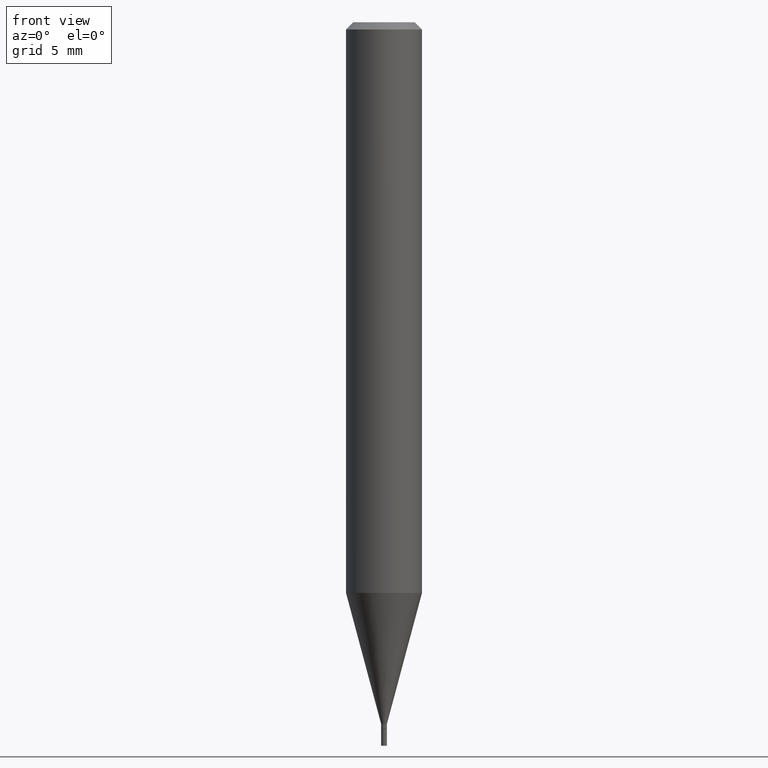
[diagram: clean part render]
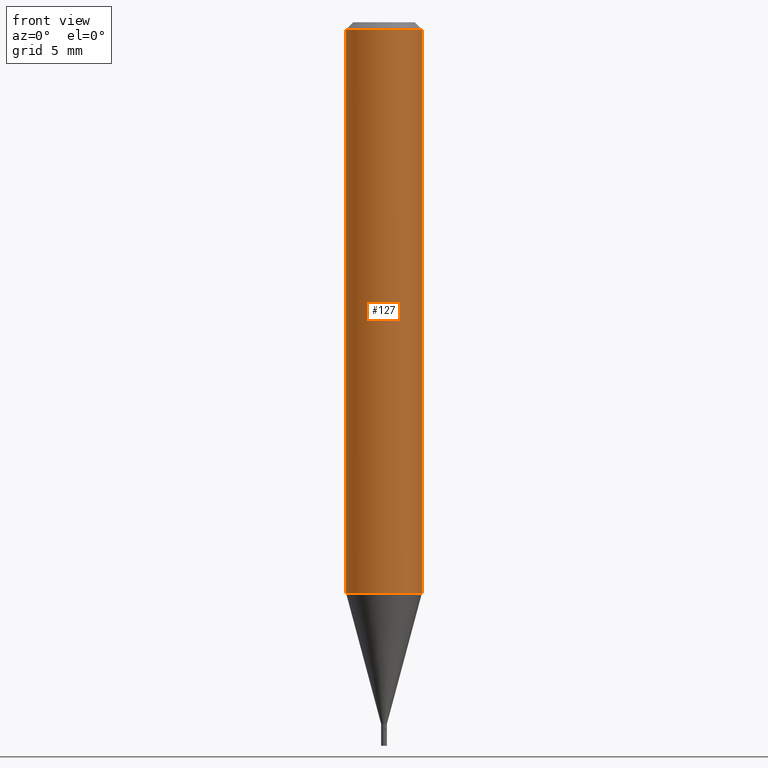
[diagram: same view with one face highlighted and labeled with its STEP entity id]
A machine part, front view. The second image highlights one B-rep face of the part: STEP entity #127.
In plain terms, the highlighted cylindrical surface (partial cylindrical patch) has radius 2.0002 mm, axis along (-0, 0, 1).
Its self-contained STEP definition (entity closure, byte-faithful):
#7 = CYLINDRICAL_SURFACE ( 'NONE', #288, 0.07875000000000000056 ) ;
#14 = DIRECTION ( 'NONE',  ( -2.445468806185136597E-29, 3.491481338843145583E-15, 1.000000000000000000 ) ) ;
#15 = ORIENTED_EDGE ( 'NONE', *, *, #343, .F. ) ;
#26 = ORIENTED_EDGE ( 'NONE', *, *, #465, .T. ) ;
#77 = LINE ( 'NONE', #292, #251 ) ;
#82 = EDGE_CURVE ( 'NONE', #205, #410, #260, .T. ) ;
#91 = DIRECTION ( 'NONE',  ( -2.445468806185136597E-29, 3.491481338843145583E-15, 1.000000000000000000 ) ) ;
#117 = DIRECTION ( 'NONE',  ( -2.445468806185136877E-29, 3.491481338843145188E-15, 1.000000000000000000 ) ) ;
#120 = CIRCLE ( 'NONE', #145, 0.07875000000000000056 ) ;
#127 = ADVANCED_FACE ( 'NONE', ( #435 ), #7, .T. ) ;
#129 = VECTOR ( 'NONE', #117, 39.37007874015748143 ) ;
#132 = ORIENTED_EDGE ( 'NONE', *, *, #294, .F. ) ;
#145 = AXIS2_PLACEMENT_3D ( 'NONE', #273, #91, #199 ) ;
#157 = DIRECTION ( 'NONE',  ( 1.000000000000000000, -6.982962677686265922E-15, 4.876176775795935232E-29 ) ) ;
#178 = EDGE_LOOP ( 'NONE', ( #132, #26, #348, #15 ) ) ;
#179 = DIRECTION ( 'NONE',  ( -2.445468806185136877E-29, 3.491481338843145188E-15, 1.000000000000000000 ) ) ;
#180 = VERTEX_POINT ( 'NONE', #225 ) ;
#199 = DIRECTION ( 'NONE',  ( 1.000000000000000000, -6.982962677686268288E-15, 0.000000000000000000 ) ) ;
#205 = VERTEX_POINT ( 'NONE', #377 ) ;
#225 = CARTESIAN_POINT ( 'NONE',  ( -0.07875000000000000056, -1.532054578686097613E-15, -0.01499999999999999944 ) ) ;
#232 = DIRECTION ( 'NONE',  ( 1.000000000000000000, -6.982962677686265922E-15, 0.000000000000000000 ) ) ;
#246 = AXIS2_PLACEMENT_3D ( 'NONE', #283, #14, #232 ) ;
#251 = VECTOR ( 'NONE', #179, 39.37007874015748143 ) ;
#260 = LINE ( 'NONE', #466, #129 ) ;
#273 = CARTESIAN_POINT ( 'NONE',  ( 2.893283295264761422E-29, -4.130841746111705750E-15, -1.183120098668607900 ) ) ;
#283 = CARTESIAN_POINT ( 'NONE',  ( 3.668203209277705088E-31, -5.237222008264718399E-17, -0.01499999999999999944 ) ) ;
#288 = AXIS2_PLACEMENT_3D ( 'NONE', #290, #402, #157 ) ;
#290 = CARTESIAN_POINT ( 'NONE',  ( 0.000000000000000000, 0.000000000000000000, 0.000000000000000000 ) ) ;
#292 = CARTESIAN_POINT ( 'NONE',  ( -0.07875000000000000056, 5.595524044110789003E-16, -3.873661383575737792E-30 ) ) ;
#294 = EDGE_CURVE ( 'NONE', #458, #180, #77, .T. ) ;
#337 = CARTESIAN_POINT ( 'NONE',  ( -0.07875000000000000056, -3.571289341700626159E-15, -1.183120098668607900 ) ) ;
#343 = EDGE_CURVE ( 'NONE', #180, #410, #407, .T. ) ;
#348 = ORIENTED_EDGE ( 'NONE', *, *, #82, .T. ) ;
#377 = CARTESIAN_POINT ( 'NONE',  ( 0.07875000000000000056, -4.680750056979499095E-15, -1.183120098668607900 ) ) ;
#402 = DIRECTION ( 'NONE',  ( -2.445468806185136597E-29, 3.491481338843145583E-15, 1.000000000000000000 ) ) ;
#407 = CIRCLE ( 'NONE', #246, 0.07875000000000000056 ) ;
#410 = VERTEX_POINT ( 'NONE', #447 ) ;
#435 = FACE_OUTER_BOUND ( 'NONE', #178, .T. ) ;
#447 = CARTESIAN_POINT ( 'NONE',  ( 0.07875000000000000056, -6.022805309504406221E-16, -0.01499999999999999944 ) ) ;
#458 = VERTEX_POINT ( 'NONE', #337 ) ;
#465 = EDGE_CURVE ( 'NONE', #458, #205, #120, .T. ) ;
#466 = CARTESIAN_POINT ( 'NONE',  ( 0.07875000000000000056, -5.499083108677934443E-16, 3.839989210939299016E-30 ) ) ;